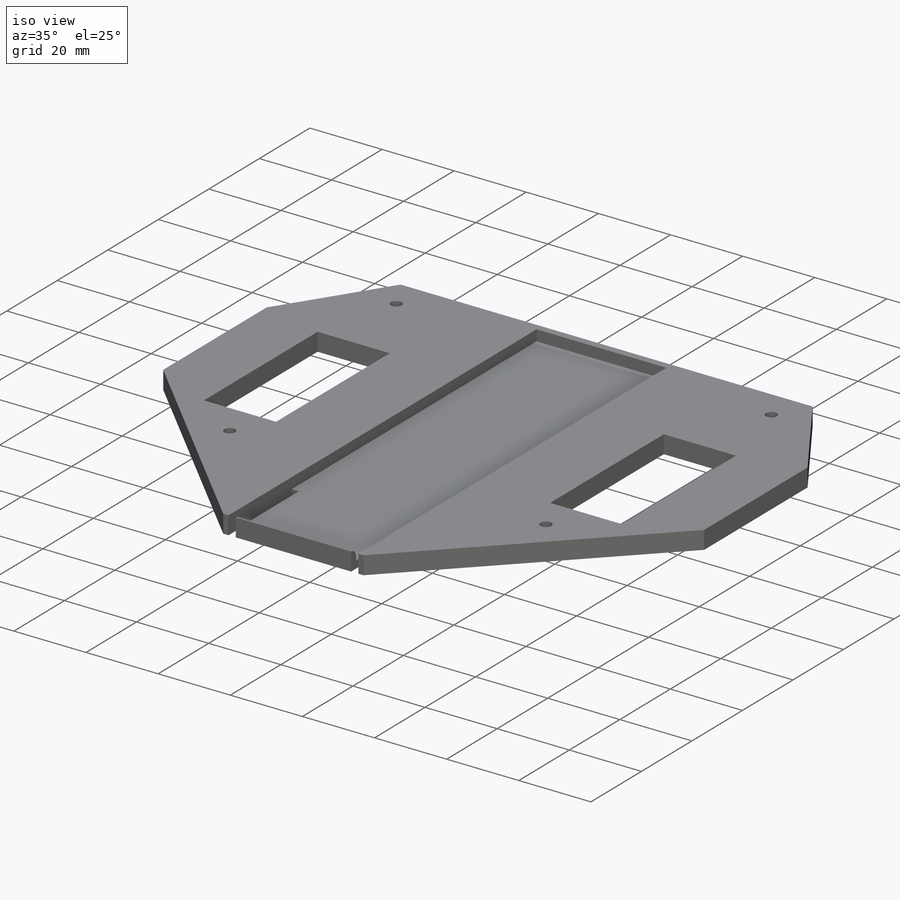
[diagram: iso view]
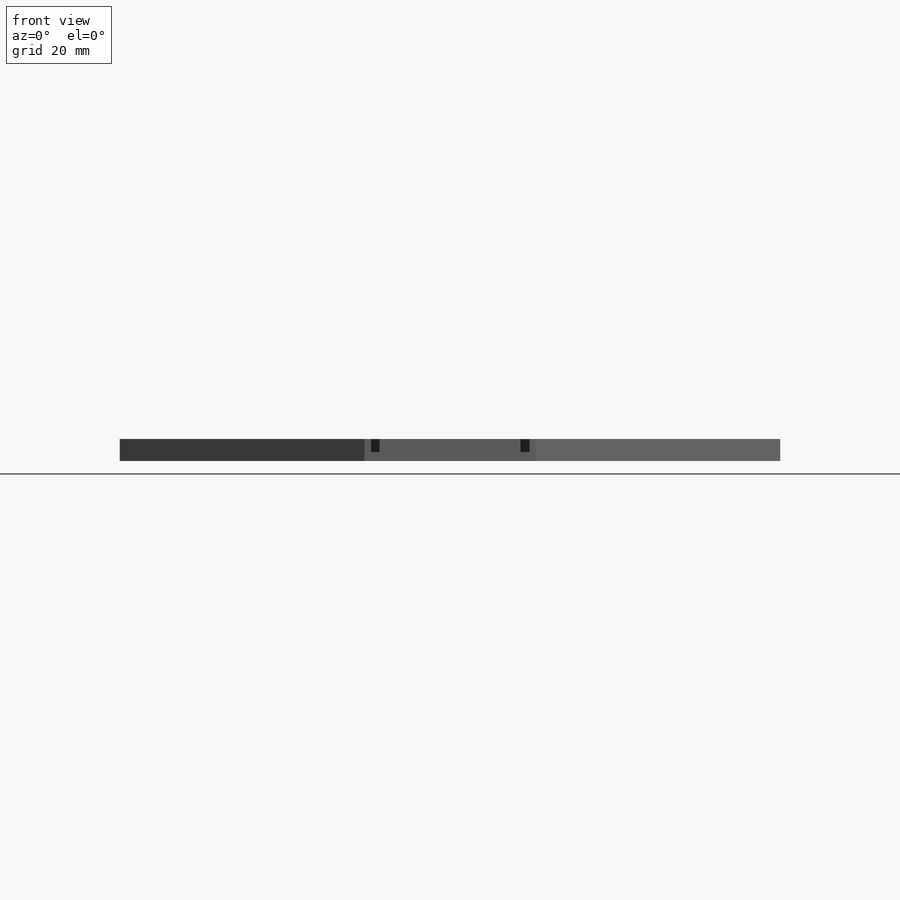
[diagram: front view]
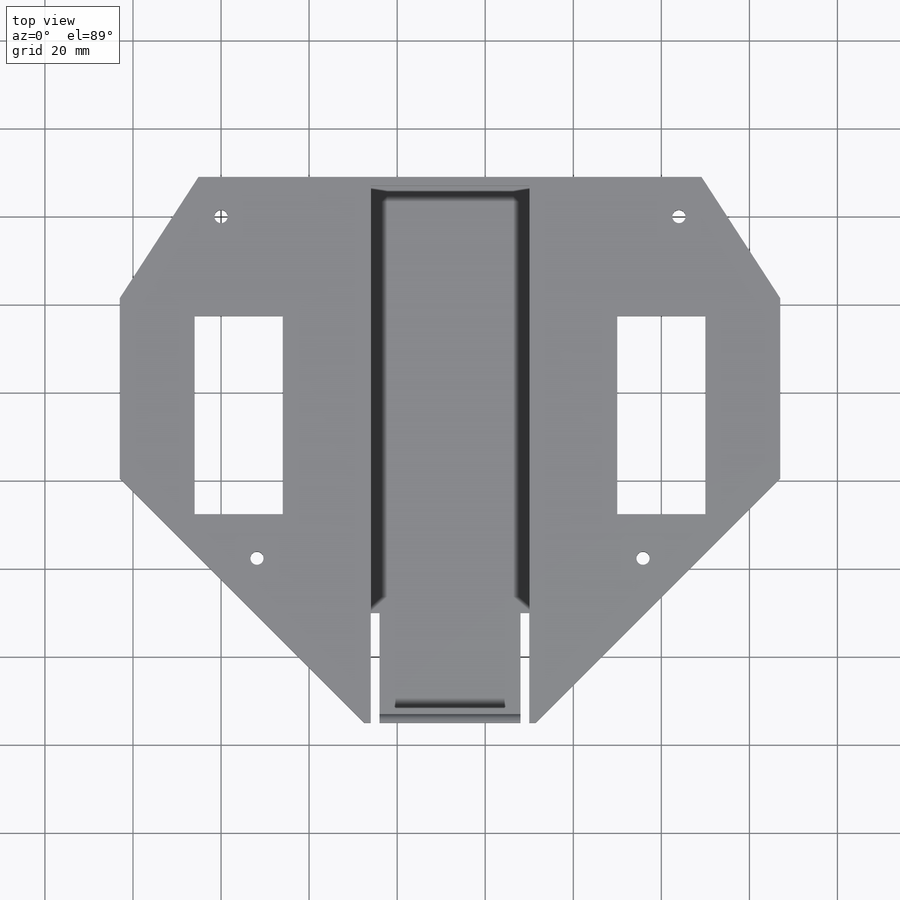
[diagram: top view]
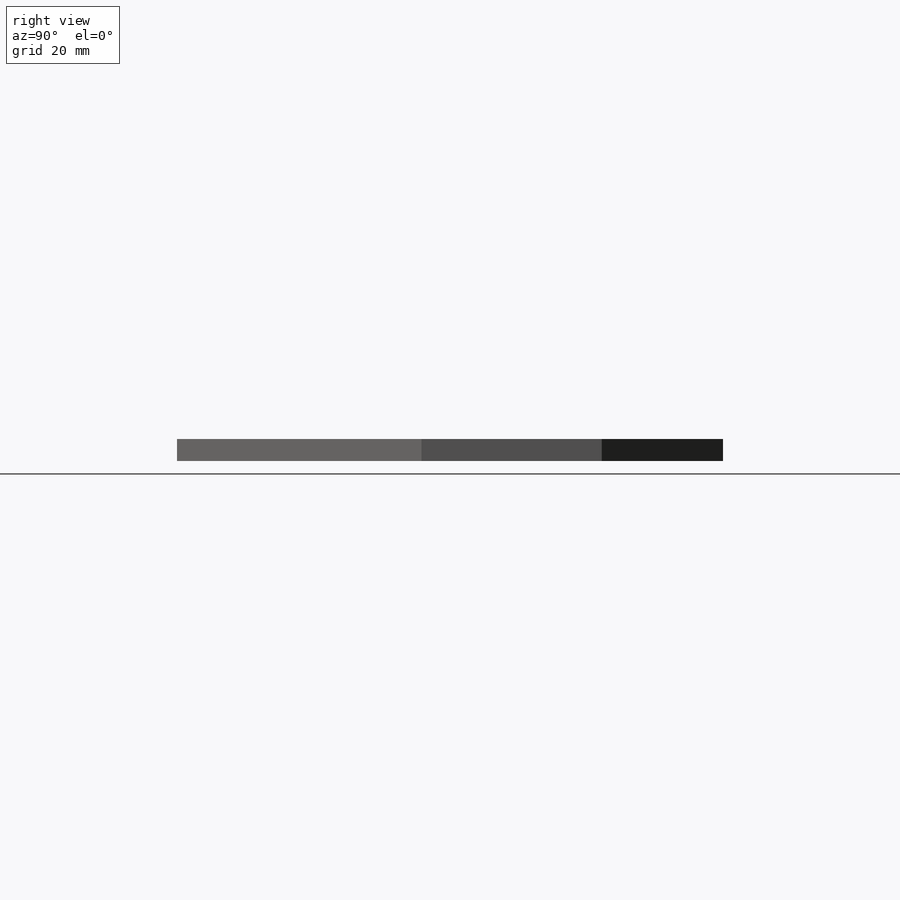
[diagram: right view]
SOLIDWORKS PART (.sldprt)
format: sldprt  version: not decoded by parser v0  size: 297,472 bytes
history: native  units: mm
features: sketch x6, cut_extrude x3, plane x2, material x1, extrude x1, hole x1, mirror x1, fillet x1 (+11 scaffold rows collapsed)
feature tree (27):
  scaffold x11  (default folders/planes/origin — collapsed)
  material  "PMMA"
  plane  "Plane1"
  sketch  "Sketch3"  dims[c1.D1=150.0mm c1.D2=150.0mm c1.D3=23.0mm c1.D4=55.0mm c1.D5=104.0mm c2.D2=9.0mm c2.D4=124.0mm c2.D5=~77.128371mm c3.D5=135.0deg c3.D6=150.0mm c4.D6=135.0deg c4.D5=~54.537994mm c5.D5=135.0deg c5.D6=~77.130126mm c6.D6=135.0deg c6.D7=~29.250366mm c7.D7=33.0deg c7.D8=~40.932495mm c8.D8=33.0deg c8.D9=~78.54434mm c8.D4=124.0mm c9.D9=124.0mm c9.D2=~8.999913mm c9.D1=~103.998196mm c10.D1=~84.000969deg c11.D1=150.0mm c11.D2=124.0mm c11.D3=23.0mm c11.D4=9.0mm]
  extrude  "Boss-Extrude1"  Depth=5mm
  hole  "Ø3.0 (3) Diameter Hole1"  Diameter=3mm Depth=6mm
  sketch  "Sketch5"
  sketch  "Sketch4"  dims[hole-wizard template sketch: 49 standard entries collapsed; hole parameters kept: c15.Drill Angle=118.0deg]
  sketch  "Sketch6"  dims[D1=120.0mm D2=36.0mm D3=57.0mm D4=2.0mm]
  cut_extrude  "Cut-Extrude1"  Depth=3mm
  sketch  "Sketch9"  dims[c1.D1=45.0mm c1.D2=10.0mm c1.D3=20.0mm c1.D4=20.0mm c2.D2=10.0mm]
  cut_extrude  "Cut-Extrude3"  [1 undecoded]
  plane  "Plane2"
  mirror  "Mirror1"
  sketch  "Sketch10"  dims[D1=2.0mm D2=25.0mm D3=2.0mm D4=25.0mm]
  cut_extrude  "Cut-Extrude4"  [1 undecoded]
  fillet  "Fillet3"  Radius=2mm
decode coverage: 9 of 13 modeling features carry decoded parameters
note: ~ marks probable driven/reference dimensions
note: 2 parameter values undecoded
note: suppression state not decoded; provenance and decode notes live in map.json
